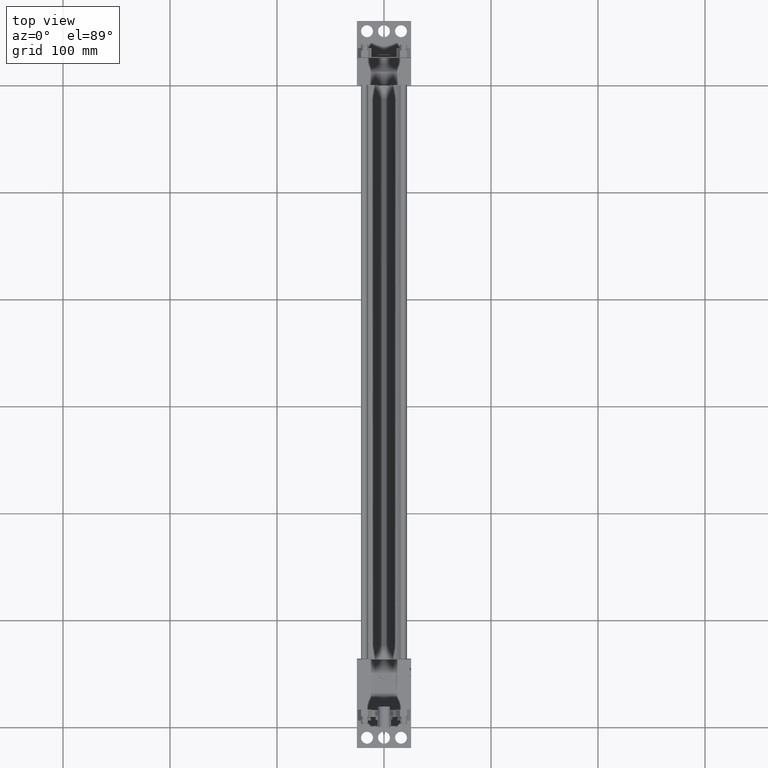
[diagram: clean part render]
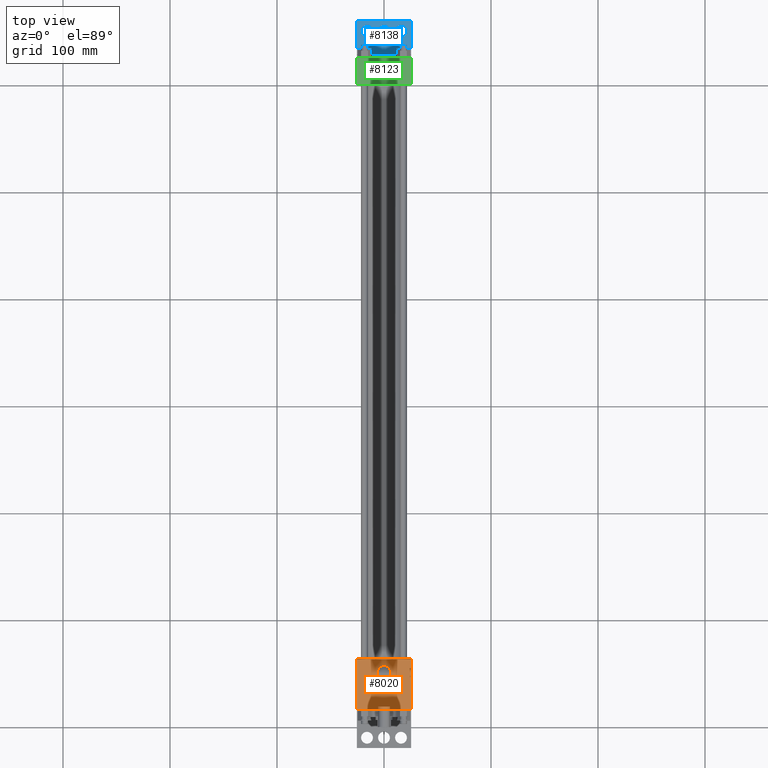
[diagram: same view with three faces highlighted in distinct colors, each labeled with its STEP entity id]
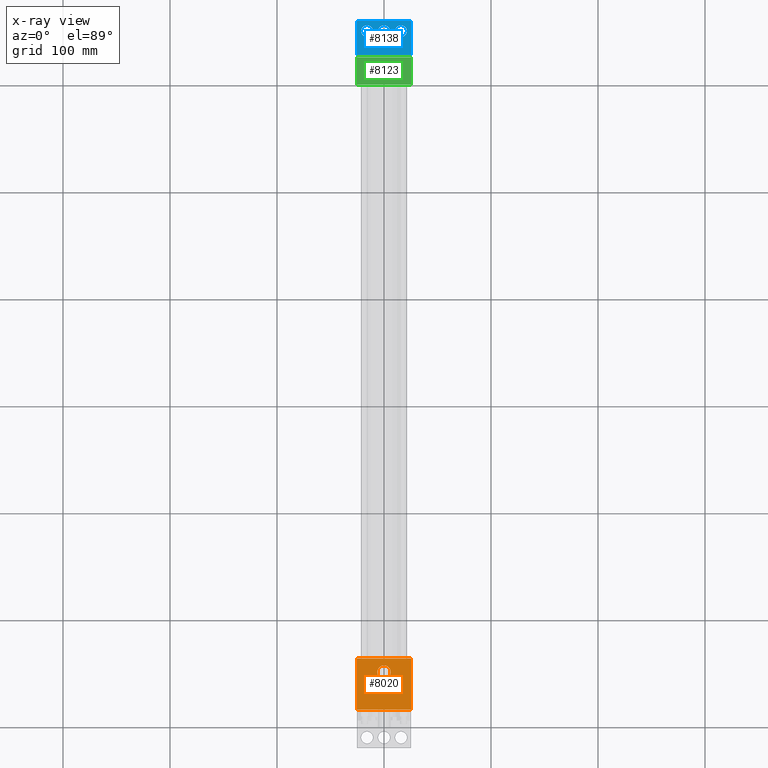
[diagram: x-ray of the same camera — body ghosted, the three highlighted faces saturated]
A machine part, top view with three faces highlighted in distinct colors.
The next image is the same camera in x-ray (body ghosted, the three faces saturated) — at least one of them is partly hidden behind the body in this view.
Their STEP definitions:

[orange] entity #8020 — the highlighted planar face has unit normal (0, 0, 1).
#503=VERTEX_POINT('',#504);
#504=CARTESIAN_POINT('',(-2.540000000E+001,6.350000000E+001,2.540000000E+001));
#505=EDGE_CURVE('',#510,#503,#506,.T.);
#506=LINE('',#507,#508);
#507=CARTESIAN_POINT('',(2.540000000E+001,6.350000000E+001,2.540000000E+001));
#508=VECTOR('',#509,1.0E+000);
#509=DIRECTION('',(-1.0E+000,0.0E+000,0.0E+000));
#510=VERTEX_POINT('',#511);
#511=CARTESIAN_POINT('',(2.540000000E+001,6.350000000E+001,2.540000000E+001));
#619=VERTEX_POINT('',#621);
#621=CARTESIAN_POINT('',(2.540000000E+001,1.587500000E+001,2.540000000E+001));
#662=EDGE_CURVE('',#510,#619,#663,.T.);
#663=LINE('',#664,#665);
#664=CARTESIAN_POINT('',(2.540000000E+001,6.350000000E+001,2.540000000E+001));
#665=VECTOR('',#666,1.0E+000);
#666=DIRECTION('',(0.0E+000,-1.0E+000,0.0E+000));
#672=FACE_OUTER_BOUND('',#674,.T.);
#673=FACE_BOUND('',#675,.T.);
#674=EDGE_LOOP('',(#676));
#675=EDGE_LOOP('',(#685,#686,#687,#688));
#676=ORIENTED_EDGE('',*,*,#677,.T.);
#677=EDGE_CURVE('',#683,#683,#678,.T.);
#678=CIRCLE('',#679,6.243320000E+000);
#679=AXIS2_PLACEMENT_3D('',#680,#681,#682);
#680=CARTESIAN_POINT('',(0.000000000E+000,5.080000000E+001,2.540000000E+001));
#681=DIRECTION('',(0.0E+000,0.0E+000,-1.0E+000));
#682=DIRECTION('',(-1.0E+000,0.0E+000,0.0E+000));
#683=VERTEX_POINT('',#684);
#684=CARTESIAN_POINT('',(-6.243320000E+000,5.080000000E+001,2.540000000E+001));
#685=ORIENTED_EDGE('',*,*,#689,.F.);
#686=ORIENTED_EDGE('',*,*,#662,.F.);
#687=ORIENTED_EDGE('',*,*,#505,.T.);
#688=ORIENTED_EDGE('',*,*,#696,.T.);
#689=EDGE_CURVE('',#619,#694,#690,.T.);
#690=LINE('',#691,#692);
#691=CARTESIAN_POINT('',(2.540000000E+001,1.587500000E+001,2.540000000E+001));
#692=VECTOR('',#693,1.0E+000);
#693=DIRECTION('',(-1.0E+000,0.0E+000,0.0E+000));
#694=VERTEX_POINT('',#695);
#695=CARTESIAN_POINT('',(-2.540000000E+001,1.587500000E+001,2.540000000E+001));
#696=EDGE_CURVE('',#503,#694,#697,.T.);
#697=LINE('',#698,#699);
#698=CARTESIAN_POINT('',(-2.540000000E+001,6.350000000E+001,2.540000000E+001));
#699=VECTOR('',#700,1.0E+000);
#700=DIRECTION('',(0.0E+000,-1.0E+000,0.0E+000));
#701=PLANE('',#702);
#702=AXIS2_PLACEMENT_3D('',#703,#704,#705);
#703=CARTESIAN_POINT('',(2.540000000E+001,6.350000000E+001,2.540000000E+001));
#704=DIRECTION('',(0.0E+000,0.0E+000,1.0E+000));
#705=DIRECTION('',(1.0E+000,0.0E+000,0.0E+000));
#8020=ADVANCED_FACE('',(#672,#673),#701,.T.);

[blue] entity #8138 — the highlighted planar face has unit normal (0, 0, -1).
#3725=VERTEX_POINT('',#3726);
#3726=CARTESIAN_POINT('',(2.540000000E+001,6.604000000E+002,-2.698750000E+001));
#3727=EDGE_CURVE('',#3732,#3725,#3728,.T.);
#3728=LINE('',#3729,#3730);
#3729=CARTESIAN_POINT('',(2.540000000E+001,6.286500000E+002,-2.698750000E+001));
#3730=VECTOR('',#3731,1.0E+000);
#3731=DIRECTION('',(0.0E+000,1.0E+000,0.0E+000));
#3732=VERTEX_POINT('',#3733);
#3733=CARTESIAN_POINT('',(2.540000000E+001,6.286500000E+002,-2.698750000E+001));
#3813=VERTEX_POINT('',#3814);
#3814=CARTESIAN_POINT('',(-2.540000000E+001,6.286500000E+002,-2.698750000E+001));
#3815=EDGE_CURVE('',#3813,#3820,#3816,.T.);
#3816=LINE('',#3817,#3818);
#3817=CARTESIAN_POINT('',(-2.540000000E+001,6.286500000E+002,-2.698750000E+001));
#3818=VECTOR('',#3819,1.0E+000);
#3819=DIRECTION('',(0.0E+000,1.0E+000,0.0E+000));
#3820=VERTEX_POINT('',#3821);
#3821=CARTESIAN_POINT('',(-2.540000000E+001,6.604000000E+002,-2.698750000E+001));
#4343=EDGE_CURVE('',#3820,#3725,#4344,.T.);
#4344=LINE('',#4345,#4346);
#4345=CARTESIAN_POINT('',(-2.540000000E+001,6.604000000E+002,-2.698750000E+001));
#4346=VECTOR('',#4347,1.0E+000);
#4347=DIRECTION('',(1.0E+000,0.0E+000,0.0E+000));
#4535=EDGE_CURVE('',#3813,#3732,#4536,.T.);
#4536=LINE('',#4537,#4538);
#4537=CARTESIAN_POINT('',(-2.540000000E+001,6.286500000E+002,-2.698750000E+001));
#4538=VECTOR('',#4539,1.0E+000);
#4539=DIRECTION('',(1.0E+000,0.0E+000,0.0E+000));
#4545=FACE_OUTER_BOUND('',#4549,.T.);
#4546=FACE_BOUND('',#4550,.T.);
#4547=FACE_BOUND('',#4551,.T.);
#4548=FACE_BOUND('',#4552,.T.);
#4549=EDGE_LOOP('',(#4553));
#4550=EDGE_LOOP('',(#4562));
#4551=EDGE_LOOP('',(#4571));
#4552=EDGE_LOOP('',(#4580,#4581,#4582,#4583));
#4553=ORIENTED_EDGE('',*,*,#4554,.T.);
#4554=EDGE_CURVE('',#4560,#4560,#4555,.T.);
#4555=CIRCLE('',#4556,5.556250000E+000);
#4556=AXIS2_PLACEMENT_3D('',#4557,#4558,#4559);
#4557=CARTESIAN_POINT('',(0.000000000E+000,6.508750000E+002,-2.698750000E+001));
#4558=DIRECTION('',(0.0E+000,0.0E+000,-1.0E+000));
#4559=DIRECTION('',(1.0E+000,0.0E+000,0.0E+000));
#4560=VERTEX_POINT('',#4561);
#4561=CARTESIAN_POINT('',(-5.556250000E+000,6.508750000E+002,-2.698750000E+001));
#4562=ORIENTED_EDGE('',*,*,#4563,.T.);
#4563=EDGE_CURVE('',#4569,#4569,#4564,.T.);
#4564=CIRCLE('',#4565,5.556250000E+000);
#4565=AXIS2_PLACEMENT_3D('',#4566,#4567,#4568);
#4566=CARTESIAN_POINT('',(-1.587500000E+001,6.508750000E+002,-2.698750000E+001));
#4567=DIRECTION('',(0.0E+000,0.0E+000,-1.0E+000));
#4568=DIRECTION('',(1.0E+000,0.0E+000,0.0E+000));
#4569=VERTEX_POINT('',#4570);
#4570=CARTESIAN_POINT('',(-1.031875000E+001,6.508750000E+002,-2.698750000E+001));
#4571=ORIENTED_EDGE('',*,*,#4572,.T.);
#4572=EDGE_CURVE('',#4578,#4578,#4573,.T.);
#4573=CIRCLE('',#4574,5.556250000E+000);
#4574=AXIS2_PLACEMENT_3D('',#4575,#4576,#4577);
#4575=CARTESIAN_POINT('',(1.587500000E+001,6.508750000E+002,-2.698750000E+001));
#4576=DIRECTION('',(0.0E+000,0.0E+000,-1.0E+000));
#4577=DIRECTION('',(1.0E+000,0.0E+000,0.0E+000));
#4578=VERTEX_POINT('',#4579);
#4579=CARTESIAN_POINT('',(2.143125000E+001,6.508750000E+002,-2.698750000E+001));
#4580=ORIENTED_EDGE('',*,*,#3727,.T.);
#4581=ORIENTED_EDGE('',*,*,#4343,.F.);
#4582=ORIENTED_EDGE('',*,*,#3815,.F.);
#4583=ORIENTED_EDGE('',*,*,#4535,.T.);
#4584=PLANE('',#4585);
#4585=AXIS2_PLACEMENT_3D('',#4586,#4587,#4588);
#4586=CARTESIAN_POINT('',(-2.540000000E+001,6.286500000E+002,-2.698750000E+001));
#4587=DIRECTION('',(0.0E+000,0.0E+000,-1.0E+000));
#4588=DIRECTION('',(1.0E+000,0.0E+000,0.0E+000));
#8138=ADVANCED_FACE('',(#4545,#4546,#4547,#4548),#4584,.F.);

[green] entity #8123 — the highlighted planar face has unit normal (0, 0, 1).
#3425=VERTEX_POINT('',#3426);
#3426=CARTESIAN_POINT('',(2.540000000E+001,6.000750000E+002,2.540000000E+001));
#3427=EDGE_CURVE('',#3425,#3432,#3428,.T.);
#3428=LINE('',#3429,#3430);
#3429=CARTESIAN_POINT('',(2.540000000E+001,6.000750000E+002,2.540000000E+001));
#3430=VECTOR('',#3431,1.0E+000);
#3431=DIRECTION('',(-1.0E+000,0.0E+000,0.0E+000));
#3432=VERTEX_POINT('',#3433);
#3433=CARTESIAN_POINT('',(-2.540000000E+001,6.000750000E+002,2.540000000E+001));
#3618=VERTEX_POINT('',#3619);
#3619=CARTESIAN_POINT('',(-2.540000000E+001,6.254750000E+002,2.540000000E+001));
#3620=EDGE_CURVE('',#3625,#3618,#3621,.T.);
#3621=LINE('',#3622,#3623);
#3622=CARTESIAN_POINT('',(2.540000000E+001,6.254750000E+002,2.540000000E+001));
#3623=VECTOR('',#3624,1.0E+000);
#3624=DIRECTION('',(-1.0E+000,0.0E+000,0.0E+000));
#3625=VERTEX_POINT('',#3626);
#3626=CARTESIAN_POINT('',(2.540000000E+001,6.254750000E+002,2.540000000E+001));
#3701=EDGE_CURVE('',#3625,#3425,#3702,.T.);
#3702=LINE('',#3703,#3704);
#3703=CARTESIAN_POINT('',(2.540000000E+001,6.254750000E+002,2.540000000E+001));
#3704=VECTOR('',#3705,1.0E+000);
#3705=DIRECTION('',(0.0E+000,-1.0E+000,0.0E+000));
#3751=FACE_OUTER_BOUND('',#3753,.T.);
#3752=FACE_BOUND('',#3754,.T.);
#3753=EDGE_LOOP('',(#3755));
#3754=EDGE_LOOP('',(#3764,#3765,#3766,#3767));
#3755=ORIENTED_EDGE('',*,*,#3756,.T.);
#3756=EDGE_CURVE('',#3762,#3762,#3757,.T.);
#3757=CIRCLE('',#3758,6.243320000E+000);
#3758=AXIS2_PLACEMENT_3D('',#3759,#3760,#3761);
#3759=CARTESIAN_POINT('',(0.000000000E+000,6.127750000E+002,2.540000000E+001));
#3760=DIRECTION('',(0.0E+000,0.0E+000,-1.0E+000));
#3761=DIRECTION('',(-1.0E+000,0.0E+000,0.0E+000));
#3762=VERTEX_POINT('',#3763);
#3763=CARTESIAN_POINT('',(-6.243320000E+000,6.127750000E+002,2.540000000E+001));
#3764=ORIENTED_EDGE('',*,*,#3768,.T.);
#3765=ORIENTED_EDGE('',*,*,#3427,.F.);
#3766=ORIENTED_EDGE('',*,*,#3701,.F.);
#3767=ORIENTED_EDGE('',*,*,#3620,.T.);
#3768=EDGE_CURVE('',#3618,#3432,#3769,.T.);
#3769=LINE('',#3770,#3771);
#3770=CARTESIAN_POINT('',(-2.540000000E+001,6.254750000E+002,2.540000000E+001));
#3771=VECTOR('',#3772,1.0E+000);
#3772=DIRECTION('',(0.0E+000,-1.0E+000,0.0E+000));
#3773=PLANE('',#3774);
#3774=AXIS2_PLACEMENT_3D('',#3775,#3776,#3777);
#3775=CARTESIAN_POINT('',(2.540000000E+001,6.254750000E+002,2.540000000E+001));
#3776=DIRECTION('',(0.0E+000,0.0E+000,1.0E+000));
#3777=DIRECTION('',(1.0E+000,0.0E+000,0.0E+000));
#8123=ADVANCED_FACE('',(#3751,#3752),#3773,.T.);